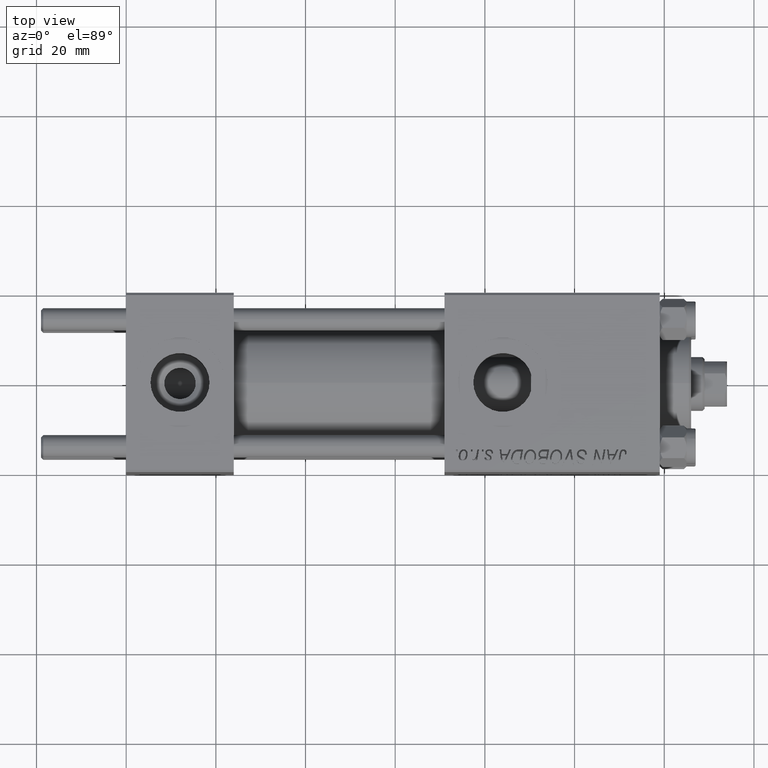
[diagram: clean part render]
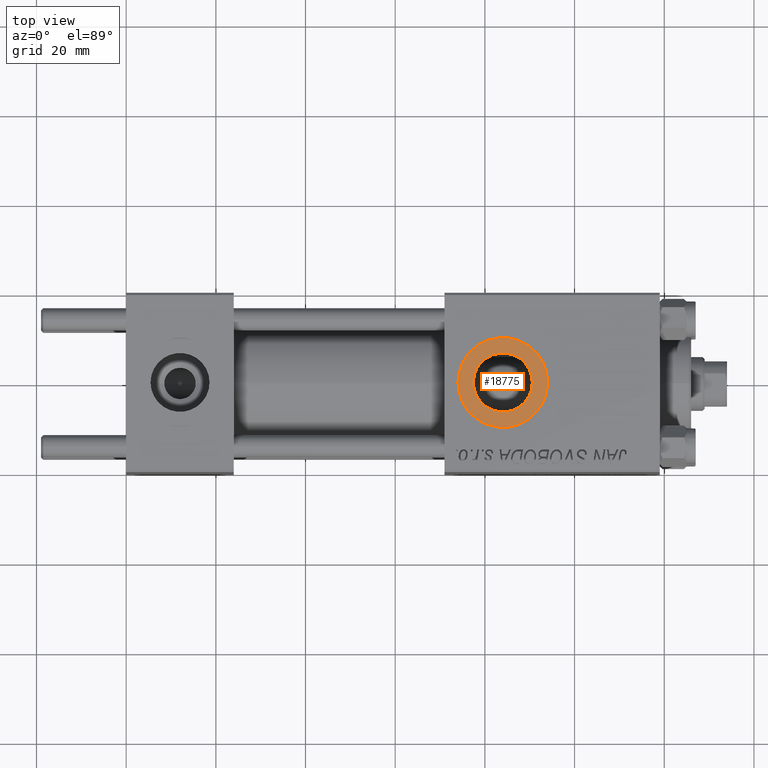
[diagram: same view with one face highlighted and labeled with its STEP entity id]
A machine part, top view. The second image highlights one B-rep face of the part: STEP entity #18775.
In plain terms, the highlighted planar face has unit normal (0, 0, 1).
Its self-contained STEP definition (entity closure, byte-faithful):
#41 = AXIS2_PLACEMENT_3D ( 'NONE', #38995, #15790, #34708 ) ;
#836 = VERTEX_POINT ( 'NONE', #20853 ) ;
#1300 = DIRECTION ( 'NONE',  ( 1.000000000000000000, 0.000000000000000000, 0.000000000000000000 ) ) ;
#3410 = FACE_BOUND ( 'NONE', #39050, .T. ) ;
#5632 = AXIS2_PLACEMENT_3D ( 'NONE', #18839, #7455, #18587 ) ;
#5726 = ORIENTED_EDGE ( 'NONE', *, *, #47646, .T. ) ;
#5839 = CIRCLE ( 'NONE', #7466, 6.580000000001542837 ) ;
#6355 = CIRCLE ( 'NONE', #12821, 6.580000000001542837 ) ;
#6683 = DIRECTION ( 'NONE',  ( 1.000000000000000000, 0.000000000000000000, 0.000000000000000000 ) ) ;
#7455 = DIRECTION ( 'NONE',  ( 0.000000000000000000, 0.000000000000000000, 1.000000000000000000 ) ) ;
#7466 = AXIS2_PLACEMENT_3D ( 'NONE', #21012, #24323, #1300 ) ;
#8779 = ORIENTED_EDGE ( 'NONE', *, *, #40443, .T. ) ;
#12821 = AXIS2_PLACEMENT_3D ( 'NONE', #40512, #14527, #6683 ) ;
#14527 = DIRECTION ( 'NONE',  ( -0.000000000000000000, -0.000000000000000000, -1.000000000000000000 ) ) ;
#15561 = PLANE ( 'NONE',  #5632 ) ;
#15790 = DIRECTION ( 'NONE',  ( 0.000000000000000000, 0.000000000000000000, 1.000000000000000000 ) ) ;
#16917 = EDGE_CURVE ( 'NONE', #24707, #24876, #6355, .T. ) ;
#18587 = DIRECTION ( 'NONE',  ( 1.000000000000000000, 0.000000000000000000, -0.000000000000000000 ) ) ;
#18775 = ADVANCED_FACE ( 'NONE', ( #3410, #45316 ), #15561, .T. ) ;
#18839 = CARTESIAN_POINT ( 'NONE',  ( 84.00000000000000000, -1.734723475976806897E-15, 19.80000000000000071 ) ) ;
#20170 = CARTESIAN_POINT ( 'NONE',  ( 84.00000000000000000, -1.734723475976806897E-15, 19.80000000000000071 ) ) ;
#20853 = CARTESIAN_POINT ( 'NONE',  ( 73.99999999999845102, -5.100766768292640183E-16, 19.80000000000000071 ) ) ;
#21012 = CARTESIAN_POINT ( 'NONE',  ( 84.00000000000000000, -1.734723475976806897E-15, 19.80000000000000071 ) ) ;
#21070 = EDGE_LOOP ( 'NONE', ( #39858, #8779 ) ) ;
#22153 = CARTESIAN_POINT ( 'NONE',  ( 90.58000000000154728, -9.289058821376599092E-16, 19.80000000000000071 ) ) ;
#24323 = DIRECTION ( 'NONE',  ( -0.000000000000000000, -0.000000000000000000, -1.000000000000000000 ) ) ;
#24707 = VERTEX_POINT ( 'NONE', #43391 ) ;
#24876 = VERTEX_POINT ( 'NONE', #22153 ) ;
#25131 = ORIENTED_EDGE ( 'NONE', *, *, #16917, .T. ) ;
#25179 = EDGE_CURVE ( 'NONE', #35971, #836, #38769, .T. ) ;
#31172 = CARTESIAN_POINT ( 'NONE',  ( 94.00000000000154898, -1.734723475976806897E-15, 19.80000000000000071 ) ) ;
#31471 = CIRCLE ( 'NONE', #33848, 10.00000000000154898 ) ;
#33848 = AXIS2_PLACEMENT_3D ( 'NONE', #20170, #39330, #36270 ) ;
#34708 = DIRECTION ( 'NONE',  ( 1.000000000000000000, 0.000000000000000000, 0.000000000000000000 ) ) ;
#35971 = VERTEX_POINT ( 'NONE', #31172 ) ;
#36270 = DIRECTION ( 'NONE',  ( 1.000000000000000000, 0.000000000000000000, 0.000000000000000000 ) ) ;
#38769 = CIRCLE ( 'NONE', #41, 10.00000000000154898 ) ;
#38995 = CARTESIAN_POINT ( 'NONE',  ( 84.00000000000000000, -1.734723475976806897E-15, 19.80000000000000071 ) ) ;
#39050 = EDGE_LOOP ( 'NONE', ( #25131, #5726 ) ) ;
#39330 = DIRECTION ( 'NONE',  ( 0.000000000000000000, 0.000000000000000000, 1.000000000000000000 ) ) ;
#39858 = ORIENTED_EDGE ( 'NONE', *, *, #25179, .T. ) ;
#40443 = EDGE_CURVE ( 'NONE', #836, #35971, #31471, .T. ) ;
#40512 = CARTESIAN_POINT ( 'NONE',  ( 84.00000000000000000, -1.734723475976806897E-15, 19.80000000000000071 ) ) ;
#43391 = CARTESIAN_POINT ( 'NONE',  ( 77.41999999999846693, -1.734723475976806897E-15, 19.80000000000000071 ) ) ;
#45316 = FACE_OUTER_BOUND ( 'NONE', #21070, .T. ) ;
#47646 = EDGE_CURVE ( 'NONE', #24876, #24707, #5839, .T. ) ;